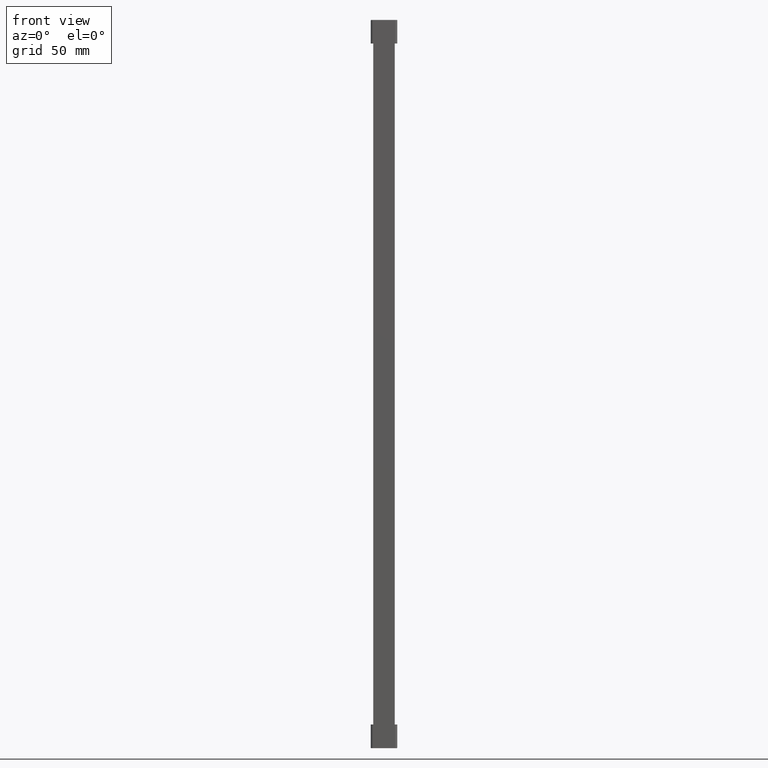
[diagram: clean part render]
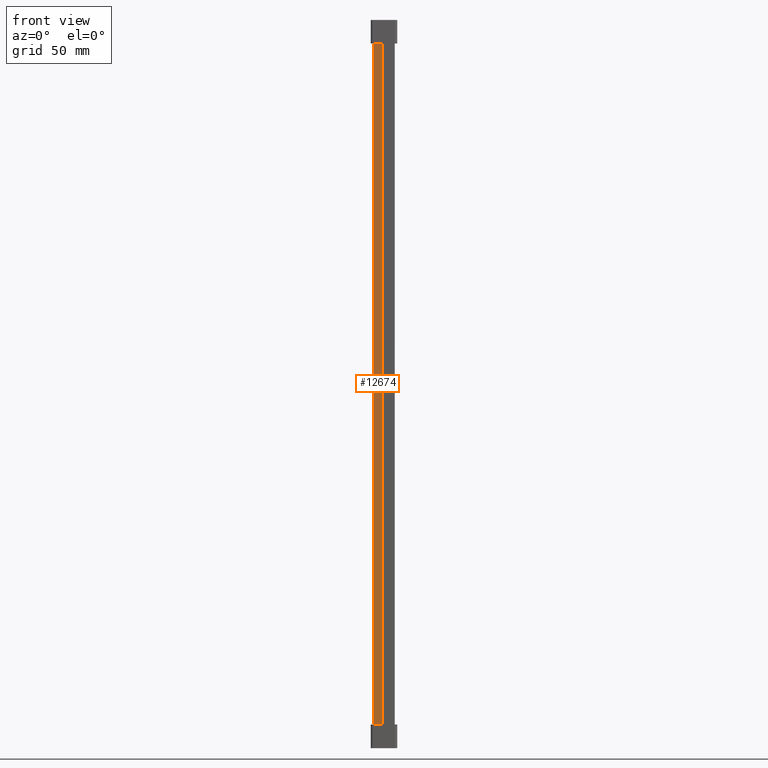
[diagram: same view with one face highlighted and labeled with its STEP entity id]
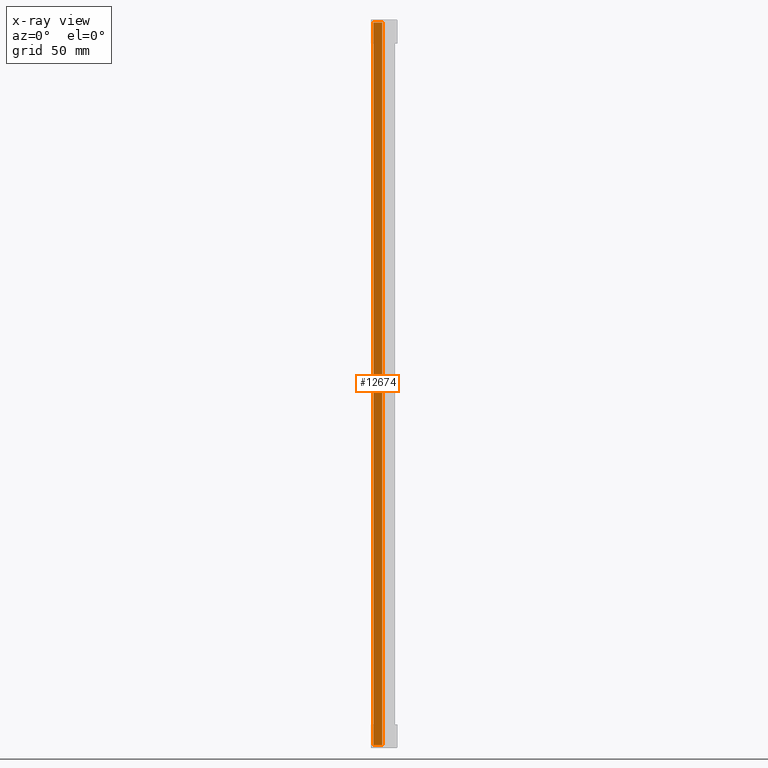
[diagram: x-ray of the same camera — body ghosted, the highlighted face saturated]
A machine part, front view. The second image highlights one B-rep face of the part: STEP entity #12674.
The next image is the same camera in x-ray: the body ghosted, the highlighted face saturated — about 0% of this face is hidden behind the body in this view.
In plain terms, the highlighted planar face has unit normal (0, 1, 0).
Its self-contained STEP definition (entity closure, byte-faithful):
#504 = CARTESIAN_POINT ( 'NONE',  ( 0.007179677250587269400, 1.112391428970127500E-014, 217.7999999999999800 ) ) ;
#522 = CARTESIAN_POINT ( 'NONE',  ( 4.000000000000447600, 0.0000000000000000000, 217.7999999999998700 ) ) ;
#1499 = LINE ( 'NONE', #1529, #17256 ) ;
#1529 = CARTESIAN_POINT ( 'NONE',  ( 4.000000000000447600, 0.0000000000000000000, 220.2000000000000500 ) ) ;
#1534 = DIRECTION ( 'NONE',  ( -0.0000000000000000000, 0.0000000000000000000, -1.000000000000000000 ) ) ;
#1688 = LINE ( 'NONE', #1822, #17330 ) ;
#1690 = CARTESIAN_POINT ( 'NONE',  ( 0.004786233357150887000, -5.421010862427522200E-017, -103.8000000000009200 ) ) ;
#1699 = CARTESIAN_POINT ( 'NONE',  ( 1.034266530926254600E-011, -1.627658511443863500E-014, -103.7999030758330300 ) ) ;
#1739 = CARTESIAN_POINT ( 'NONE',  ( 0.007179677124571982700, -1.074444352933134900E-014, -103.8000000000005800 ) ) ;
#1755 = CARTESIAN_POINT ( 'NONE',  ( 0.002392569235896499600, 4.065758146820641600E-016, -103.7999677721869000 ) ) ;
#1783 = CARTESIAN_POINT ( 'NONE',  ( 0.0000000000000000000, 0.0000000000000000000, -103.8000000000028100 ) ) ;
#1794 = LINE ( 'NONE', #1783, #17349 ) ;
#1798 = DIRECTION ( 'NONE',  ( -1.000000000000000000, -0.0000000000000000000, 0.0000000000000000000 ) ) ;
#1822 = CARTESIAN_POINT ( 'NONE',  ( 0.0000000000000000000, 0.0000000000000000000, 217.7999999999999800 ) ) ;
#1841 = DIRECTION ( 'NONE',  ( 1.000000000000000000, 0.0000000000000000000, -0.0000000000000000000 ) ) ;
#2222 = CARTESIAN_POINT ( 'NONE',  ( 0.007179677250587269400, 1.112391428970127500E-014, 217.7999999999999800 ) ) ;
#2223 = CARTESIAN_POINT ( 'NONE',  ( 0.004786233434241288700, -8.131516293641283300E-017, 217.7999999999999800 ) ) ;
#2224 = CARTESIAN_POINT ( 'NONE',  ( 0.002392569264060256500, 5.421010862427522200E-017, 217.7999677721837500 ) ) ;
#2234 = CARTESIAN_POINT ( 'NONE',  ( 3.023004604626514300E-027, -2.930056371142075700E-014, 217.7999030758262800 ) ) ;
#2438 = LINE ( 'NONE', #2453, #17374 ) ;
#2439 = DIRECTION ( 'NONE',  ( 0.0000000000000000000, 0.0000000000000000000, -1.000000000000000000 ) ) ;
#2453 = CARTESIAN_POINT ( 'NONE',  ( 0.0000000000000000000, -3.295974604355933500E-014, 220.2000000000000500 ) ) ;
#5149 = FACE_OUTER_BOUND ( 'NONE', #22779, .T. ) ;
#5196 = PLANE ( 'NONE',  #10331 ) ;
#5310 = CARTESIAN_POINT ( 'NONE',  ( 0.0000000000000000000, 0.0000000000000000000, 220.2000000000000500 ) ) ;
#5354 = DIRECTION ( 'NONE',  ( 0.0000000000000000000, 1.000000000000000000, 0.0000000000000000000 ) ) ;
#5378 = DIRECTION ( 'NONE',  ( 0.0000000000000000000, -0.0000000000000000000, 1.000000000000000000 ) ) ;
#10331 = AXIS2_PLACEMENT_3D ( 'NONE', #5310, #5354, #5378 ) ;
#10419 = B_SPLINE_CURVE_WITH_KNOTS ( 'NONE', 3,
 ( #1699, #1755, #1690, #1739 ),
 .UNSPECIFIED., .F., .F.,
 ( 4, 4 ),
 ( 1.033890250358889200E-014, 7.180331302263653300E-006 ),
 .UNSPECIFIED. ) ;
#10442 = B_SPLINE_CURVE_WITH_KNOTS ( 'NONE', 3,
 ( #2222, #2223, #2224, #2234 ),
 .UNSPECIFIED., .F., .F.,
 ( 4, 4 ),
 ( 4.336808689942017700E-019, 7.180331449038778600E-006 ),
 .UNSPECIFIED. ) ;
#12674 = ADVANCED_FACE ( 'NONE', ( #5149 ), #5196, .F. ) ;
#14226 = ORIENTED_EDGE ( 'NONE', *, *, #28010, .F. ) ;
#14233 = ORIENTED_EDGE ( 'NONE', *, *, #27976, .F. ) ;
#14234 = ORIENTED_EDGE ( 'NONE', *, *, #28088, .T. ) ;
#17256 = VECTOR ( 'NONE', #1534, 1000.000000000000000 ) ;
#17330 = VECTOR ( 'NONE', #1841, 1000.000000000000000 ) ;
#17349 = VECTOR ( 'NONE', #1798, 1000.000000000000000 ) ;
#17374 = VECTOR ( 'NONE', #2439, 1000.000000000000000 ) ;
#20601 = VERTEX_POINT ( 'NONE', #30406 ) ;
#21532 = VERTEX_POINT ( 'NONE', #29931 ) ;
#21535 = VERTEX_POINT ( 'NONE', #29934 ) ;
#21537 = VERTEX_POINT ( 'NONE', #29936 ) ;
#21556 = VERTEX_POINT ( 'NONE', #504 ) ;
#21561 = VERTEX_POINT ( 'NONE', #522 ) ;
#22779 = EDGE_LOOP ( 'NONE', ( #28548, #14226, #14233, #28544, #28545, #14234 ) ) ;
#27976 = EDGE_CURVE ( 'NONE', #21561, #20601, #1499, .T. ) ;
#27999 = EDGE_CURVE ( 'NONE', #21532, #21535, #10419, .T. ) ;
#28008 = EDGE_CURVE ( 'NONE', #21556, #21561, #1688, .T. ) ;
#28010 = EDGE_CURVE ( 'NONE', #20601, #21535, #1794, .T. ) ;
#28043 = EDGE_CURVE ( 'NONE', #21556, #21537, #10442, .T. ) ;
#28088 = EDGE_CURVE ( 'NONE', #21537, #21532, #2438, .T. ) ;
#28544 = ORIENTED_EDGE ( 'NONE', *, *, #28008, .F. ) ;
#28545 = ORIENTED_EDGE ( 'NONE', *, *, #28043, .T. ) ;
#28548 = ORIENTED_EDGE ( 'NONE', *, *, #27999, .T. ) ;
#29931 = CARTESIAN_POINT ( 'NONE',  ( 1.034266530926254600E-011, -1.627658511443863500E-014, -103.7999030758330300 ) ) ;
#29934 = CARTESIAN_POINT ( 'NONE',  ( 0.007179677124571982700, -1.074444352933134900E-014, -103.8000000000005800 ) ) ;
#29936 = CARTESIAN_POINT ( 'NONE',  ( 3.023004604626514300E-027, -2.930056371142075700E-014, 217.7999030758262800 ) ) ;
#30406 = CARTESIAN_POINT ( 'NONE',  ( 4.000000000000447600, 0.0000000000000000000, -103.8000000000027800 ) ) ;